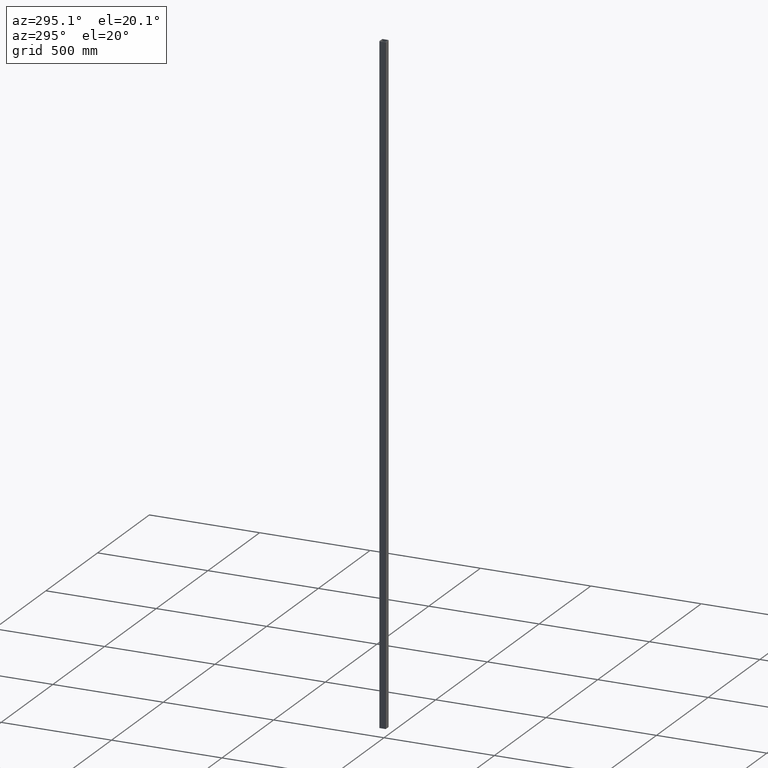
[diagram: clean part render]
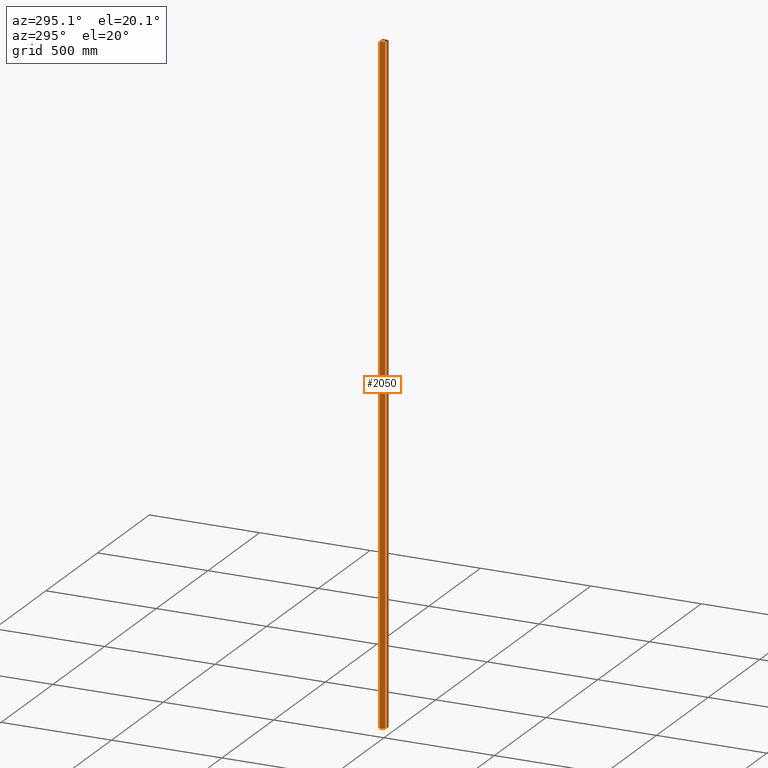
[diagram: same view with one face highlighted and labeled with its STEP entity id]
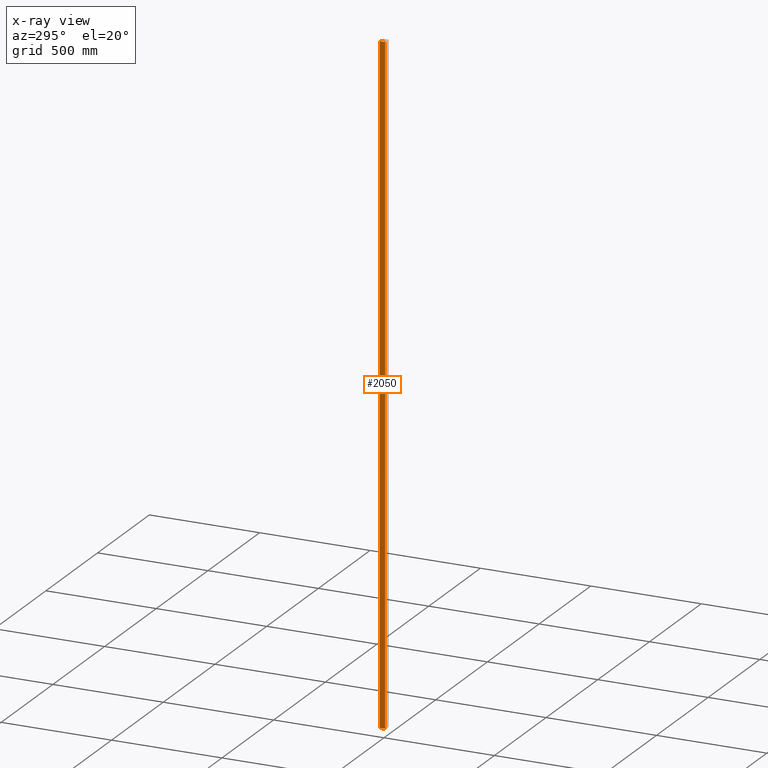
[diagram: x-ray of the same camera — body ghosted, the highlighted face saturated]
A machine part, auxiliary view. The second image highlights one B-rep face of the part: STEP entity #2050.
The next image is the same camera in x-ray: the body ghosted, the highlighted face saturated — about 0% of this face is hidden behind the body in this view.
In plain terms, the highlighted planar face has unit normal (1, 0, -0).
Its self-contained STEP definition (entity closure, byte-faithful):
#768 = CARTESIAN_POINT ( 'NONE',  ( -14.99999999999999822, 11.99999999999999467, 1500.000000000000000 ) ) ;
#851 = DIRECTION ( 'NONE',  ( -0.000000000000000000, -0.000000000000000000, -1.000000000000000000 ) ) ;
#2006 = DIRECTION ( 'NONE',  ( 1.000000000000000000, 1.445602896647339163E-16, -0.000000000000000000 ) ) ;
#2050 = ADVANCED_FACE ( 'NONE', ( #3195 ), #11150, .F. ) ;
#2193 = LINE ( 'NONE', #8715, #6352 ) ;
#2848 = VECTOR ( 'NONE', #851, 1000.000000000000000 ) ;
#2972 = ORIENTED_EDGE ( 'NONE', *, *, #11055, .T. ) ;
#3195 = FACE_OUTER_BOUND ( 'NONE', #9218, .T. ) ;
#3228 = LINE ( 'NONE', #9187, #14087 ) ;
#3677 = LINE ( 'NONE', #11568, #2848 ) ;
#4608 = CARTESIAN_POINT ( 'NONE',  ( -14.99999999999999822, 11.99999999999999467, 1500.000000000000000 ) ) ;
#6189 = VERTEX_POINT ( 'NONE', #15199 ) ;
#6352 = VECTOR ( 'NONE', #8661, 1000.000000000000000 ) ;
#6949 = VERTEX_POINT ( 'NONE', #15819 ) ;
#8480 = DIRECTION ( 'NONE',  ( -1.445602896647339163E-16, 1.000000000000000000, 0.000000000000000000 ) ) ;
#8661 = DIRECTION ( 'NONE',  ( -0.000000000000000000, -0.000000000000000000, -1.000000000000000000 ) ) ;
#8715 = CARTESIAN_POINT ( 'NONE',  ( -14.99999999999999822, 11.99999999999999467, 1500.000000000000000 ) ) ;
#9179 = CARTESIAN_POINT ( 'NONE',  ( -14.99999999999999822, 11.99999999999999467, -1500.000000000000000 ) ) ;
#9187 = CARTESIAN_POINT ( 'NONE',  ( -14.99999999999999822, 11.99999999999999467, 1500.000000000000000 ) ) ;
#9218 = EDGE_LOOP ( 'NONE', ( #2972, #14609, #13390, #9736 ) ) ;
#9736 = ORIENTED_EDGE ( 'NONE', *, *, #13395, .T. ) ;
#10554 = VERTEX_POINT ( 'NONE', #768 ) ;
#10629 = DIRECTION ( 'NONE',  ( 1.445602896647339163E-16, -1.000000000000000000, 0.000000000000000000 ) ) ;
#11055 = EDGE_CURVE ( 'NONE', #6189, #15211, #14949, .T. ) ;
#11150 = PLANE ( 'NONE',  #14809 ) ;
#11327 = EDGE_CURVE ( 'NONE', #6949, #15211, #3677, .T. ) ;
#11568 = CARTESIAN_POINT ( 'NONE',  ( -14.99999999999999645, -12.00000000000000355, 1500.000000000000000 ) ) ;
#11834 = DIRECTION ( 'NONE',  ( 1.445602896647339163E-16, -1.000000000000000000, 0.000000000000000000 ) ) ;
#11848 = VECTOR ( 'NONE', #10629, 1000.000000000000000 ) ;
#13390 = ORIENTED_EDGE ( 'NONE', *, *, #13790, .F. ) ;
#13395 = EDGE_CURVE ( 'NONE', #10554, #6189, #2193, .T. ) ;
#13790 = EDGE_CURVE ( 'NONE', #10554, #6949, #3228, .T. ) ;
#14031 = CARTESIAN_POINT ( 'NONE',  ( -14.99999999999999645, -12.00000000000000355, -1500.000000000000000 ) ) ;
#14087 = VECTOR ( 'NONE', #11834, 1000.000000000000000 ) ;
#14609 = ORIENTED_EDGE ( 'NONE', *, *, #11327, .F. ) ;
#14809 = AXIS2_PLACEMENT_3D ( 'NONE', #4608, #2006, #8480 ) ;
#14949 = LINE ( 'NONE', #9179, #11848 ) ;
#15199 = CARTESIAN_POINT ( 'NONE',  ( -14.99999999999999822, 11.99999999999999467, -1500.000000000000000 ) ) ;
#15211 = VERTEX_POINT ( 'NONE', #14031 ) ;
#15819 = CARTESIAN_POINT ( 'NONE',  ( -14.99999999999999645, -12.00000000000000355, 1500.000000000000000 ) ) ;